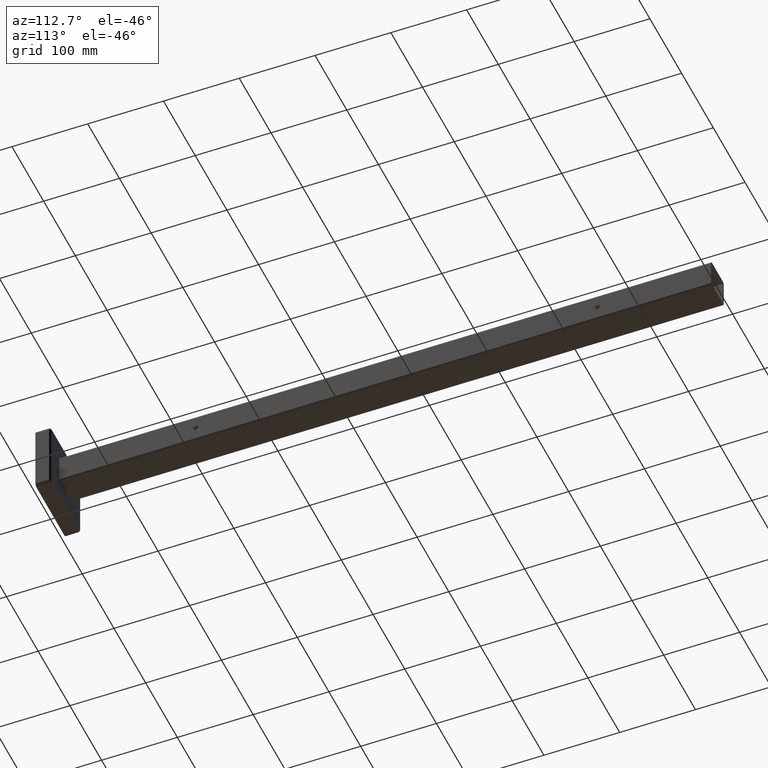
[diagram: clean part render]
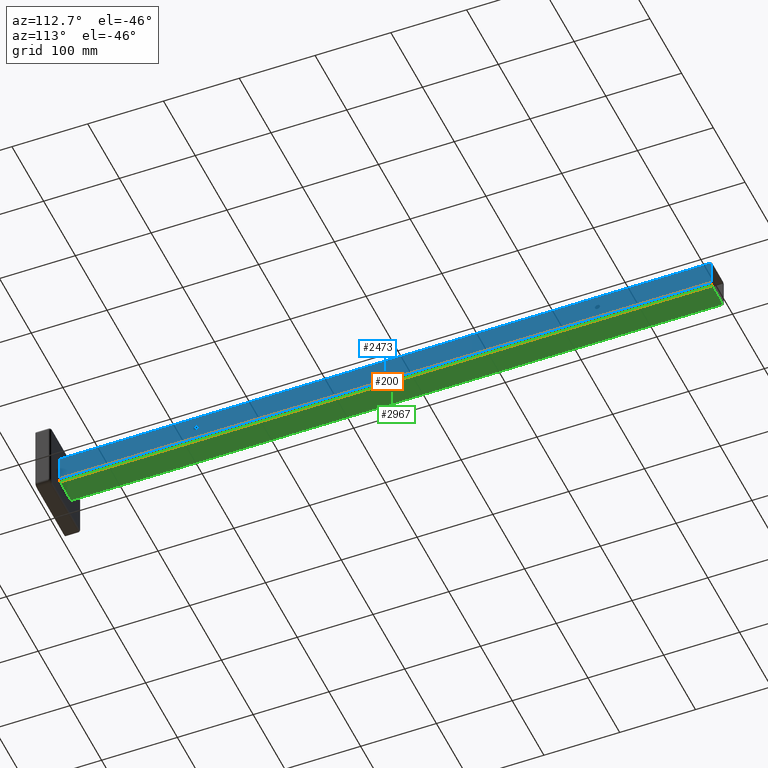
[diagram: same view with three faces highlighted in distinct colors, each labeled with its STEP entity id]
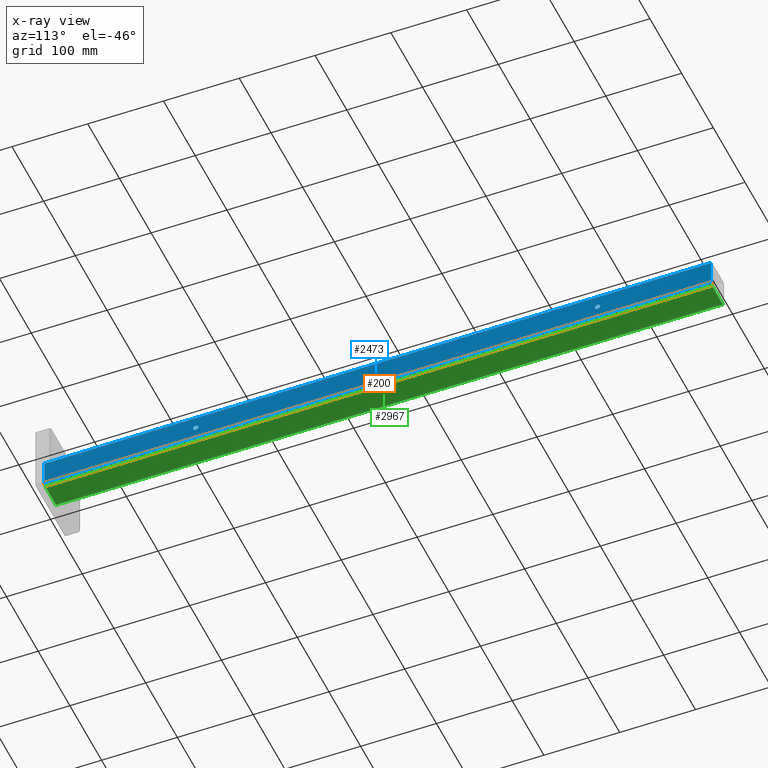
[diagram: x-ray of the same camera — body ghosted, the three highlighted faces saturated]
A machine part, auxiliary view with three faces highlighted in distinct colors.
The next image is the same camera in x-ray (body ghosted, the three faces saturated) — at least one of them is partly hidden behind the body in this view.
Their STEP definitions:

[orange] entity #200 — the highlighted cylindrical surface (edge-blend (fillet) strip) has radius 3 mm, axis along (0, -1, 0).
#150 = VERTEX_POINT ( 'NONE', #992 ) ;
#153 = CARTESIAN_POINT ( 'NONE',  ( 16.99999999999999300, 880.0000000000000000, -20.00000000000000400 ) ) ;
#200 = ADVANCED_FACE ( 'NONE', ( #3528 ), #454, .T. ) ;
#245 = ORIENTED_EDGE ( 'NONE', *, *, #2436, .F. ) ;
#292 = DIRECTION ( 'NONE',  ( -0.0000000000000000000, -1.000000000000000000, -0.0000000000000000000 ) ) ;
#454 = CYLINDRICAL_SURFACE ( 'NONE', #857, 2.999999999999999100 ) ;
#611 = VERTEX_POINT ( 'NONE', #2313 ) ;
#658 = CARTESIAN_POINT ( 'NONE',  ( 19.99999999999999300, 880.0000000000000000, -17.00000000000000400 ) ) ;
#818 = ORIENTED_EDGE ( 'NONE', *, *, #1778, .F. ) ;
#822 = DIRECTION ( 'NONE',  ( 0.0000000000000000000, 0.0000000000000000000, 1.000000000000000000 ) ) ;
#857 = AXIS2_PLACEMENT_3D ( 'NONE', #1844, #2414, #1270 ) ;
#883 = VERTEX_POINT ( 'NONE', #2533 ) ;
#992 = CARTESIAN_POINT ( 'NONE',  ( 16.99999999999999300, 0.0000000000000000000, -20.00000000000000400 ) ) ;
#1061 = DIRECTION ( 'NONE',  ( 0.0000000000000000000, 1.000000000000000000, 0.0000000000000000000 ) ) ;
#1098 = DIRECTION ( 'NONE',  ( 0.0000000000000000000, 0.0000000000000000000, 1.000000000000000000 ) ) ;
#1247 = VERTEX_POINT ( 'NONE', #3057 ) ;
#1270 = DIRECTION ( 'NONE',  ( 0.0000000000000000000, 0.0000000000000000000, -1.000000000000000000 ) ) ;
#1318 = AXIS2_PLACEMENT_3D ( 'NONE', #3112, #292, #822 ) ;
#1321 = DIRECTION ( 'NONE',  ( 0.0000000000000000000, -1.000000000000000000, 0.0000000000000000000 ) ) ;
#1368 = ORIENTED_EDGE ( 'NONE', *, *, #2016, .F. ) ;
#1438 = AXIS2_PLACEMENT_3D ( 'NONE', #2787, #1061, #1098 ) ;
#1602 = VECTOR ( 'NONE', #2674, 1000.000000000000000 ) ;
#1778 = EDGE_CURVE ( 'NONE', #611, #150, #2667, .T. ) ;
#1784 = VECTOR ( 'NONE', #1321, 1000.000000000000000 ) ;
#1844 = CARTESIAN_POINT ( 'NONE',  ( 16.99999999999999300, 880.0000000000000000, -17.00000000000000400 ) ) ;
#2004 = CIRCLE ( 'NONE', #1438, 2.999999999999999100 ) ;
#2016 = EDGE_CURVE ( 'NONE', #150, #1247, #2318, .T. ) ;
#2257 = ORIENTED_EDGE ( 'NONE', *, *, #2378, .F. ) ;
#2313 = CARTESIAN_POINT ( 'NONE',  ( 16.99999999999999300, 880.0000000000000000, -20.00000000000000400 ) ) ;
#2318 = CIRCLE ( 'NONE', #1318, 2.999999999999999100 ) ;
#2378 = EDGE_CURVE ( 'NONE', #1247, #883, #3111, .T. ) ;
#2414 = DIRECTION ( 'NONE',  ( 0.0000000000000000000, -1.000000000000000000, 0.0000000000000000000 ) ) ;
#2436 = EDGE_CURVE ( 'NONE', #883, #611, #2004, .T. ) ;
#2533 = CARTESIAN_POINT ( 'NONE',  ( 19.99999999999999300, 880.0000000000000000, -17.00000000000000400 ) ) ;
#2667 = LINE ( 'NONE', #153, #1784 ) ;
#2674 = DIRECTION ( 'NONE',  ( -0.0000000000000000000, 1.000000000000000000, -0.0000000000000000000 ) ) ;
#2787 = CARTESIAN_POINT ( 'NONE',  ( 16.99999999999999300, 880.0000000000000000, -17.00000000000000400 ) ) ;
#2822 = EDGE_LOOP ( 'NONE', ( #245, #2257, #1368, #818 ) ) ;
#3057 = CARTESIAN_POINT ( 'NONE',  ( 19.99999999999999300, 0.0000000000000000000, -17.00000000000000400 ) ) ;
#3111 = LINE ( 'NONE', #658, #1602 ) ;
#3112 = CARTESIAN_POINT ( 'NONE',  ( 16.99999999999999300, 0.0000000000000000000, -17.00000000000000400 ) ) ;
#3528 = FACE_OUTER_BOUND ( 'NONE', #2822, .T. ) ;

[blue] entity #2473 — the highlighted planar face has unit normal (-1, 0, 0).
#64 = AXIS2_PLACEMENT_3D ( 'NONE', #588, #1742, #3430 ) ;
#86 = DIRECTION ( 'NONE',  ( 0.0000000000000000000, 0.0000000000000000000, -1.000000000000000000 ) ) ;
#123 = ORIENTED_EDGE ( 'NONE', *, *, #1912, .T. ) ;
#239 = ORIENTED_EDGE ( 'NONE', *, *, #539, .F. ) ;
#361 = VECTOR ( 'NONE', #1101, 1000.000000000000000 ) ;
#469 = VERTEX_POINT ( 'NONE', #1966 ) ;
#507 = CIRCLE ( 'NONE', #64, 3.399999999999958600 ) ;
#518 = VERTEX_POINT ( 'NONE', #2827 ) ;
#539 = EDGE_CURVE ( 'NONE', #469, #3307, #507, .T. ) ;
#574 = VECTOR ( 'NONE', #1399, 1000.000000000000000 ) ;
#588 = CARTESIAN_POINT ( 'NONE',  ( 20.00000000000000000, 730.0000000000000000, -5.204170427930421300E-015 ) ) ;
#658 = CARTESIAN_POINT ( 'NONE',  ( 19.99999999999999300, 880.0000000000000000, -17.00000000000000400 ) ) ;
#664 = CARTESIAN_POINT ( 'NONE',  ( 20.00000000000000000, 200.0000000000000000, -1.313999964131768100E-015 ) ) ;
#755 = FACE_OUTER_BOUND ( 'NONE', #2141, .T. ) ;
#794 = DIRECTION ( 'NONE',  ( -1.000000000000000000, 0.0000000000000000000, 2.602085213965210600E-016 ) ) ;
#803 = EDGE_CURVE ( 'NONE', #3357, #883, #1612, .T. ) ;
#811 = CARTESIAN_POINT ( 'NONE',  ( 19.99999999999999300, 0.0000000000000000000, -20.00000000000000400 ) ) ;
#844 = CARTESIAN_POINT ( 'NONE',  ( 20.00000000000000000, 730.0000000000000000, -5.204170427930421300E-015 ) ) ;
#875 = ORIENTED_EDGE ( 'NONE', *, *, #803, .F. ) ;
#883 = VERTEX_POINT ( 'NONE', #2533 ) ;
#949 = CARTESIAN_POINT ( 'NONE',  ( 20.00000000000000400, 880.0000000000000000, 17.00000000000000000 ) ) ;
#954 = ORIENTED_EDGE ( 'NONE', *, *, #1967, .F. ) ;
#980 = ORIENTED_EDGE ( 'NONE', *, *, #2378, .T. ) ;
#996 = CARTESIAN_POINT ( 'NONE',  ( 20.00000000000000000, 200.0000000000000000, -1.313999964131768100E-015 ) ) ;
#1101 = DIRECTION ( 'NONE',  ( -2.602085213965210600E-016, -0.0000000000000000000, -1.000000000000000000 ) ) ;
#1125 = FACE_BOUND ( 'NONE', #2029, .T. ) ;
#1224 = CIRCLE ( 'NONE', #2903, 3.400000000000014100 ) ;
#1247 = VERTEX_POINT ( 'NONE', #3057 ) ;
#1370 = AXIS2_PLACEMENT_3D ( 'NONE', #3599, #794, #2475 ) ;
#1388 = CARTESIAN_POINT ( 'NONE',  ( 20.00000000000000400, 880.0000000000000000, 17.00000000000000000 ) ) ;
#1399 = DIRECTION ( 'NONE',  ( 0.0000000000000000000, -1.000000000000000000, 0.0000000000000000000 ) ) ;
#1431 = FACE_BOUND ( 'NONE', #1524, .T. ) ;
#1494 = CARTESIAN_POINT ( 'NONE',  ( 20.00000000000000000, 200.0000000000000000, -3.400000000000015500 ) ) ;
#1524 = EDGE_LOOP ( 'NONE', ( #954, #239 ) ) ;
#1542 = EDGE_CURVE ( 'NONE', #2959, #518, #1224, .T. ) ;
#1602 = VECTOR ( 'NONE', #2674, 1000.000000000000000 ) ;
#1612 = LINE ( 'NONE', #3597, #2898 ) ;
#1622 = ORIENTED_EDGE ( 'NONE', *, *, #3531, .F. ) ;
#1630 = DIRECTION ( 'NONE',  ( -2.602085213965210600E-016, -0.0000000000000000000, -1.000000000000000000 ) ) ;
#1742 = DIRECTION ( 'NONE',  ( 1.000000000000000000, -0.0000000000000000000, -2.602085213965210600E-016 ) ) ;
#1810 = ORIENTED_EDGE ( 'NONE', *, *, #1542, .F. ) ;
#1817 = LINE ( 'NONE', #1388, #574 ) ;
#1912 = EDGE_CURVE ( 'NONE', #2549, #1247, #2367, .T. ) ;
#1966 = CARTESIAN_POINT ( 'NONE',  ( 20.00000000000000000, 730.0000000000000000, 3.399999999999953300 ) ) ;
#1967 = EDGE_CURVE ( 'NONE', #3307, #469, #2145, .T. ) ;
#2000 = DIRECTION ( 'NONE',  ( 1.000000000000000000, -0.0000000000000000000, -2.602085213965210600E-016 ) ) ;
#2029 = EDGE_LOOP ( 'NONE', ( #1810, #1622 ) ) ;
#2059 = AXIS2_PLACEMENT_3D ( 'NONE', #996, #2448, #3002 ) ;
#2101 = DIRECTION ( 'NONE',  ( 1.000000000000000000, -0.0000000000000000000, -2.602085213965210600E-016 ) ) ;
#2141 = EDGE_LOOP ( 'NONE', ( #123, #980, #875, #3405 ) ) ;
#2145 = CIRCLE ( 'NONE', #3452, 3.399999999999958600 ) ;
#2297 = CARTESIAN_POINT ( 'NONE',  ( 20.00000000000000000, 730.0000000000000000, -3.399999999999963900 ) ) ;
#2367 = LINE ( 'NONE', #811, #361 ) ;
#2378 = EDGE_CURVE ( 'NONE', #1247, #883, #3111, .T. ) ;
#2448 = DIRECTION ( 'NONE',  ( 1.000000000000000000, -0.0000000000000000000, -2.602085213965210600E-016 ) ) ;
#2473 = ADVANCED_FACE ( 'NONE', ( #1125, #1431, #755 ), #2502, .F. ) ;
#2475 = DIRECTION ( 'NONE',  ( 2.602085213965210600E-016, 0.0000000000000000000, 1.000000000000000000 ) ) ;
#2502 = PLANE ( 'NONE',  #1370 ) ;
#2525 = CIRCLE ( 'NONE', #2059, 3.400000000000014100 ) ;
#2533 = CARTESIAN_POINT ( 'NONE',  ( 19.99999999999999300, 880.0000000000000000, -17.00000000000000400 ) ) ;
#2549 = VERTEX_POINT ( 'NONE', #3355 ) ;
#2674 = DIRECTION ( 'NONE',  ( -0.0000000000000000000, 1.000000000000000000, -0.0000000000000000000 ) ) ;
#2813 = DIRECTION ( 'NONE',  ( 0.0000000000000000000, 0.0000000000000000000, -1.000000000000000000 ) ) ;
#2827 = CARTESIAN_POINT ( 'NONE',  ( 20.00000000000000000, 200.0000000000000000, 3.400000000000012800 ) ) ;
#2898 = VECTOR ( 'NONE', #1630, 1000.000000000000000 ) ;
#2903 = AXIS2_PLACEMENT_3D ( 'NONE', #664, #2101, #86 ) ;
#2959 = VERTEX_POINT ( 'NONE', #1494 ) ;
#3002 = DIRECTION ( 'NONE',  ( 0.0000000000000000000, 0.0000000000000000000, -1.000000000000000000 ) ) ;
#3057 = CARTESIAN_POINT ( 'NONE',  ( 19.99999999999999300, 0.0000000000000000000, -17.00000000000000400 ) ) ;
#3111 = LINE ( 'NONE', #658, #1602 ) ;
#3307 = VERTEX_POINT ( 'NONE', #2297 ) ;
#3355 = CARTESIAN_POINT ( 'NONE',  ( 20.00000000000000400, 0.0000000000000000000, 17.00000000000000000 ) ) ;
#3357 = VERTEX_POINT ( 'NONE', #949 ) ;
#3405 = ORIENTED_EDGE ( 'NONE', *, *, #3594, .T. ) ;
#3430 = DIRECTION ( 'NONE',  ( 0.0000000000000000000, 0.0000000000000000000, -1.000000000000000000 ) ) ;
#3452 = AXIS2_PLACEMENT_3D ( 'NONE', #844, #2000, #2813 ) ;
#3531 = EDGE_CURVE ( 'NONE', #518, #2959, #2525, .T. ) ;
#3594 = EDGE_CURVE ( 'NONE', #3357, #2549, #1817, .T. ) ;
#3597 = CARTESIAN_POINT ( 'NONE',  ( 19.99999999999999300, 880.0000000000000000, -20.00000000000000400 ) ) ;
#3599 = CARTESIAN_POINT ( 'NONE',  ( 19.99999999999999300, 880.0000000000000000, -20.00000000000000400 ) ) ;

[green] entity #2967 — the highlighted planar face has unit normal (0, 0, 1).
#41 = CARTESIAN_POINT ( 'NONE',  ( -17.00000000000000400, 880.0000000000000000, -20.00000000000000400 ) ) ;
#142 = CARTESIAN_POINT ( 'NONE',  ( -17.00000000000000400, 880.0000000000000000, -20.00000000000000400 ) ) ;
#150 = VERTEX_POINT ( 'NONE', #992 ) ;
#153 = CARTESIAN_POINT ( 'NONE',  ( 16.99999999999999300, 880.0000000000000000, -20.00000000000000400 ) ) ;
#501 = VECTOR ( 'NONE', #2757, 1000.000000000000000 ) ;
#611 = VERTEX_POINT ( 'NONE', #2313 ) ;
#680 = VECTOR ( 'NONE', #2124, 1000.000000000000000 ) ;
#802 = EDGE_CURVE ( 'NONE', #150, #1227, #1570, .T. ) ;
#842 = AXIS2_PLACEMENT_3D ( 'NONE', #931, #2357, #2930 ) ;
#931 = CARTESIAN_POINT ( 'NONE',  ( -20.00000000000000400, 880.0000000000000000, -20.00000000000000400 ) ) ;
#992 = CARTESIAN_POINT ( 'NONE',  ( 16.99999999999999300, 0.0000000000000000000, -20.00000000000000400 ) ) ;
#1135 = VECTOR ( 'NONE', #1905, 1000.000000000000000 ) ;
#1164 = EDGE_CURVE ( 'NONE', #611, #2899, #2187, .T. ) ;
#1227 = VERTEX_POINT ( 'NONE', #2203 ) ;
#1321 = DIRECTION ( 'NONE',  ( 0.0000000000000000000, -1.000000000000000000, 0.0000000000000000000 ) ) ;
#1497 = ORIENTED_EDGE ( 'NONE', *, *, #802, .T. ) ;
#1549 = CARTESIAN_POINT ( 'NONE',  ( -20.00000000000000400, 880.0000000000000000, -20.00000000000000400 ) ) ;
#1570 = LINE ( 'NONE', #1621, #501 ) ;
#1621 = CARTESIAN_POINT ( 'NONE',  ( -20.00000000000000400, 0.0000000000000000000, -20.00000000000000400 ) ) ;
#1627 = EDGE_LOOP ( 'NONE', ( #1497, #3533, #3094, #1895 ) ) ;
#1778 = EDGE_CURVE ( 'NONE', #611, #150, #2667, .T. ) ;
#1784 = VECTOR ( 'NONE', #1321, 1000.000000000000000 ) ;
#1818 = PLANE ( 'NONE',  #842 ) ;
#1895 = ORIENTED_EDGE ( 'NONE', *, *, #1778, .T. ) ;
#1905 = DIRECTION ( 'NONE',  ( -1.000000000000000000, -0.0000000000000000000, -0.0000000000000000000 ) ) ;
#2002 = FACE_OUTER_BOUND ( 'NONE', #1627, .T. ) ;
#2124 = DIRECTION ( 'NONE',  ( -0.0000000000000000000, 1.000000000000000000, -0.0000000000000000000 ) ) ;
#2187 = LINE ( 'NONE', #1549, #1135 ) ;
#2203 = CARTESIAN_POINT ( 'NONE',  ( -17.00000000000000400, 0.0000000000000000000, -20.00000000000000400 ) ) ;
#2313 = CARTESIAN_POINT ( 'NONE',  ( 16.99999999999999300, 880.0000000000000000, -20.00000000000000400 ) ) ;
#2357 = DIRECTION ( 'NONE',  ( 0.0000000000000000000, 0.0000000000000000000, 1.000000000000000000 ) ) ;
#2667 = LINE ( 'NONE', #153, #1784 ) ;
#2757 = DIRECTION ( 'NONE',  ( -1.000000000000000000, -0.0000000000000000000, -0.0000000000000000000 ) ) ;
#2899 = VERTEX_POINT ( 'NONE', #41 ) ;
#2930 = DIRECTION ( 'NONE',  ( 1.000000000000000000, 0.0000000000000000000, -0.0000000000000000000 ) ) ;
#2967 = ADVANCED_FACE ( 'NONE', ( #2002 ), #1818, .F. ) ;
#3094 = ORIENTED_EDGE ( 'NONE', *, *, #1164, .F. ) ;
#3351 = LINE ( 'NONE', #142, #680 ) ;
#3484 = EDGE_CURVE ( 'NONE', #1227, #2899, #3351, .T. ) ;
#3533 = ORIENTED_EDGE ( 'NONE', *, *, #3484, .T. ) ;